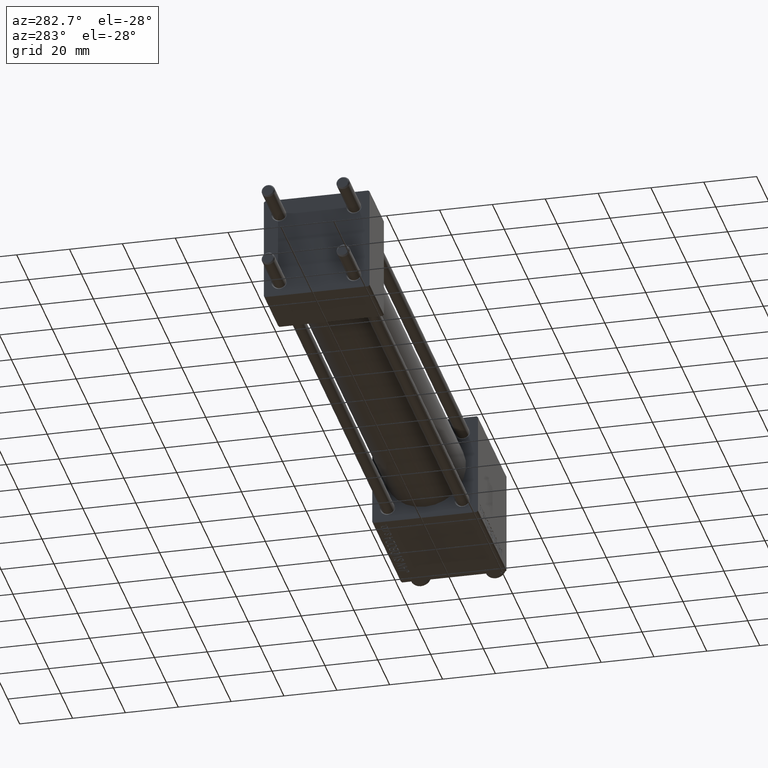
[diagram: clean part render]
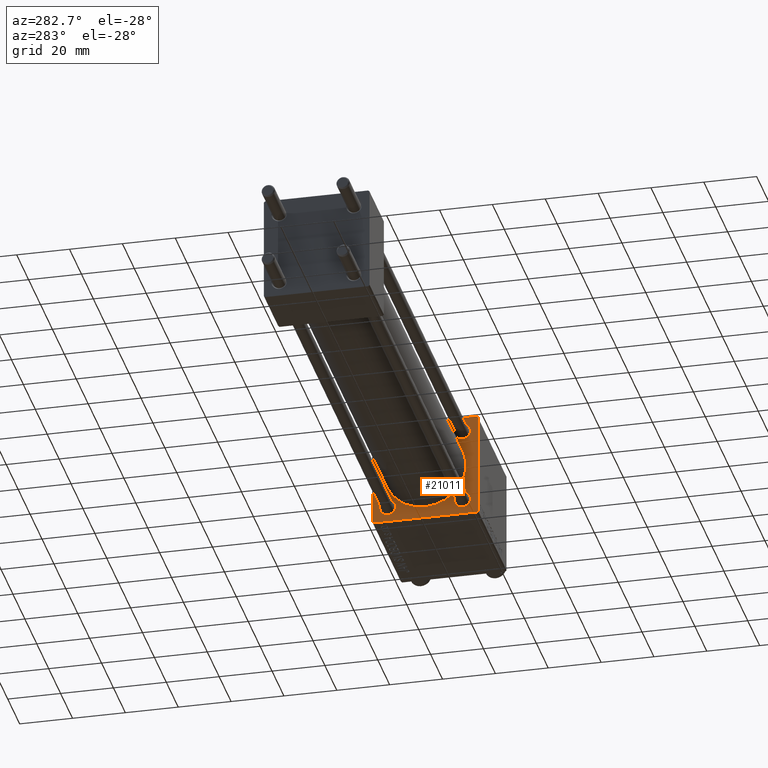
[diagram: same view with one face highlighted and labeled with its STEP entity id]
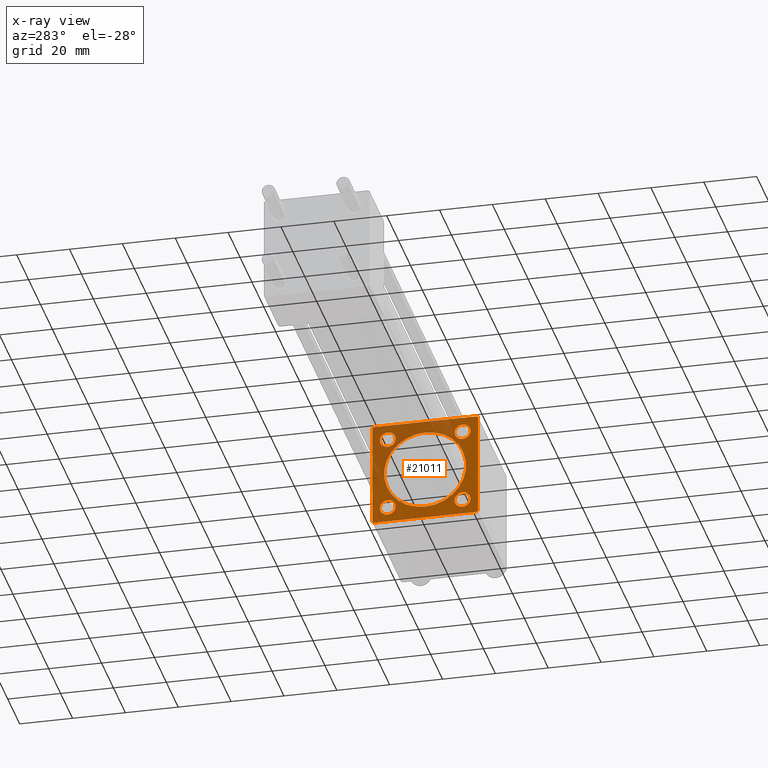
[diagram: x-ray of the same camera — body ghosted, the highlighted face saturated]
A machine part, auxiliary view. The second image highlights one B-rep face of the part: STEP entity #21011.
The next image is the same camera in x-ray: the body ghosted, the highlighted face saturated — about 33% of this face is hidden behind the body in this view.
In plain terms, the highlighted planar face has unit normal (-1, 0, 0).
Its self-contained STEP definition (entity closure, byte-faithful):
#26 = CIRCLE ( 'NONE', #4074, 3.000000000000000888 ) ;
#31 = VECTOR ( 'NONE', #31665, 1000.000000000000000 ) ;
#1076 = CARTESIAN_POINT ( 'NONE',  ( 182.0000000000000000, 1.898202538678397557E-15, -15.50000000000000000 ) ) ;
#1271 = VECTOR ( 'NONE', #11886, 1000.000000000000114 ) ;
#1364 = VERTEX_POINT ( 'NONE', #11517 ) ;
#2494 = DIRECTION ( 'NONE',  ( 1.000000000000000000, 0.000000000000000000, 0.000000000000000000 ) ) ;
#2960 = DIRECTION ( 'NONE',  ( 0.000000000000000000, 0.7071067811865474617, -0.7071067811865474617 ) ) ;
#3205 = CARTESIAN_POINT ( 'NONE',  ( 182.0000000000000000, 19.74999999999999645, 19.74999999999999645 ) ) ;
#3509 = EDGE_CURVE ( 'NONE', #18661, #34815, #49184, .T. ) ;
#3885 = FACE_BOUND ( 'NONE', #35582, .T. ) ;
#4074 = AXIS2_PLACEMENT_3D ( 'NONE', #36990, #33213, #48621 ) ;
#4123 = ORIENTED_EDGE ( 'NONE', *, *, #24737, .T. ) ;
#4125 = DIRECTION ( 'NONE',  ( -0.000000000000000000, 0.000000000000000000, 1.000000000000000000 ) ) ;
#4632 = ORIENTED_EDGE ( 'NONE', *, *, #34709, .T. ) ;
#4836 = DIRECTION ( 'NONE',  ( 0.000000000000000000, -1.000000000000000000, 0.000000000000000000 ) ) ;
#5012 = ORIENTED_EDGE ( 'NONE', *, *, #33655, .T. ) ;
#5402 = LINE ( 'NONE', #24584, #31 ) ;
#5638 = CARTESIAN_POINT ( 'NONE',  ( 182.0000000000000000, -19.50000000000000355, 19.99999999999999645 ) ) ;
#5716 = VERTEX_POINT ( 'NONE', #16281 ) ;
#6629 = VERTEX_POINT ( 'NONE', #1076 ) ;
#6779 = CARTESIAN_POINT ( 'NONE',  ( 182.0000000000000000, -20.00000000000000000, -19.50000000000002487 ) ) ;
#6817 = EDGE_LOOP ( 'NONE', ( #4632, #18607 ) ) ;
#6820 = EDGE_LOOP ( 'NONE', ( #30975, #14927 ) ) ;
#8290 = CARTESIAN_POINT ( 'NONE',  ( 182.0000000000000000, -14.15000000000000036, -14.15000000000000036 ) ) ;
#8538 = DIRECTION ( 'NONE',  ( 0.000000000000000000, 0.000000000000000000, 1.000000000000000000 ) ) ;
#8696 = CARTESIAN_POINT ( 'NONE',  ( 182.0000000000000000, -20.00000000000000355, 19.99999999999999645 ) ) ;
#9050 = CARTESIAN_POINT ( 'NONE',  ( 182.0000000000000000, 14.15000000000000036, -11.15000000000002522 ) ) ;
#9078 = CARTESIAN_POINT ( 'NONE',  ( 182.0000000000000000, 14.15000000000000036, 17.15000000000000568 ) ) ;
#9475 = DIRECTION ( 'NONE',  ( 0.000000000000000000, 0.000000000000000000, -1.000000000000000000 ) ) ;
#9873 = DIRECTION ( 'NONE',  ( 0.000000000000000000, 0.000000000000000000, 1.000000000000000000 ) ) ;
#10011 = AXIS2_PLACEMENT_3D ( 'NONE', #45985, #23260, #19471 ) ;
#10101 = VERTEX_POINT ( 'NONE', #9078 ) ;
#10114 = DIRECTION ( 'NONE',  ( 0.000000000000000000, 0.000000000000000000, -1.000000000000000000 ) ) ;
#10341 = EDGE_CURVE ( 'NONE', #30764, #35157, #36716, .T. ) ;
#10374 = EDGE_CURVE ( 'NONE', #6629, #1364, #13918, .T. ) ;
#10418 = AXIS2_PLACEMENT_3D ( 'NONE', #32850, #13640, #9873 ) ;
#11028 = VERTEX_POINT ( 'NONE', #11065 ) ;
#11065 = CARTESIAN_POINT ( 'NONE',  ( 182.0000000000000000, -14.15000000000000036, -17.14999999999997726 ) ) ;
#11196 = FACE_BOUND ( 'NONE', #6820, .T. ) ;
#11517 = CARTESIAN_POINT ( 'NONE',  ( 182.0000000000000000, 0.000000000000000000, 15.50000000000000000 ) ) ;
#11536 = DIRECTION ( 'NONE',  ( 0.000000000000000000, 0.000000000000000000, 1.000000000000000000 ) ) ;
#11886 = DIRECTION ( 'NONE',  ( 0.000000000000000000, -0.7071067811865474617, 0.7071067811865474617 ) ) ;
#12011 = DIRECTION ( 'NONE',  ( 0.000000000000000000, 0.000000000000000000, 1.000000000000000000 ) ) ;
#12908 = AXIS2_PLACEMENT_3D ( 'NONE', #30470, #34267, #11536 ) ;
#13401 = CARTESIAN_POINT ( 'NONE',  ( 182.0000000000000000, -14.15000000000000036, -11.15000000000002522 ) ) ;
#13640 = DIRECTION ( 'NONE',  ( 1.000000000000000000, 0.000000000000000000, 0.000000000000000000 ) ) ;
#13918 = CIRCLE ( 'NONE', #33967, 15.50000000000000000 ) ;
#14218 = EDGE_CURVE ( 'NONE', #1364, #6629, #27610, .T. ) ;
#14541 = VERTEX_POINT ( 'NONE', #13401 ) ;
#14927 = ORIENTED_EDGE ( 'NONE', *, *, #10374, .T. ) ;
#15574 = CIRCLE ( 'NONE', #38155, 2.999999999999976463 ) ;
#16035 = CARTESIAN_POINT ( 'NONE',  ( 182.0000000000000000, 14.15000000000000036, -17.14999999999997726 ) ) ;
#16226 = VECTOR ( 'NONE', #2960, 1000.000000000000114 ) ;
#16281 = CARTESIAN_POINT ( 'NONE',  ( 182.0000000000000000, 14.15000000000000036, 11.14999999999999858 ) ) ;
#16322 = AXIS2_PLACEMENT_3D ( 'NONE', #47866, #44060, #9475 ) ;
#16851 = CARTESIAN_POINT ( 'NONE',  ( 182.0000000000000000, 19.74999999999999645, -19.74999999999999645 ) ) ;
#16974 = CARTESIAN_POINT ( 'NONE',  ( 182.0000000000000000, 19.49999999999999645, 20.00000000000000000 ) ) ;
#17114 = LINE ( 'NONE', #16851, #18687 ) ;
#17128 = VERTEX_POINT ( 'NONE', #27376 ) ;
#17606 = LINE ( 'NONE', #3205, #16226 ) ;
#17895 = AXIS2_PLACEMENT_3D ( 'NONE', #35004, #27165, #12011 ) ;
#18197 = AXIS2_PLACEMENT_3D ( 'NONE', #8290, #38588, #23923 ) ;
#18238 = CARTESIAN_POINT ( 'NONE',  ( 182.0000000000000000, -14.15000000000000036, 11.15000000000002700 ) ) ;
#18470 = CIRCLE ( 'NONE', #10418, 2.999999999999976463 ) ;
#18488 = ORIENTED_EDGE ( 'NONE', *, *, #33480, .T. ) ;
#18607 = ORIENTED_EDGE ( 'NONE', *, *, #25307, .T. ) ;
#18661 = VERTEX_POINT ( 'NONE', #9050 ) ;
#18687 = VECTOR ( 'NONE', #44129, 1000.000000000000114 ) ;
#19263 = PLANE ( 'NONE',  #19800 ) ;
#19471 = DIRECTION ( 'NONE',  ( 0.000000000000000000, 0.000000000000000000, 1.000000000000000000 ) ) ;
#19665 = ORIENTED_EDGE ( 'NONE', *, *, #10341, .T. ) ;
#19800 = AXIS2_PLACEMENT_3D ( 'NONE', #45784, #41997, #4125 ) ;
#21011 = ADVANCED_FACE ( 'NONE', ( #38963, #3885, #26584, #38705, #11196, #46033 ), #19263, .T. ) ;
#21321 = CARTESIAN_POINT ( 'NONE',  ( 182.0000000000000000, -19.75000000000000000, 19.75000000000000000 ) ) ;
#21678 = CARTESIAN_POINT ( 'NONE',  ( 182.0000000000000000, -14.15000000000000036, 14.15000000000000036 ) ) ;
#22703 = VERTEX_POINT ( 'NONE', #39693 ) ;
#23260 = DIRECTION ( 'NONE',  ( 1.000000000000000000, 0.000000000000000000, 0.000000000000000000 ) ) ;
#23263 = ORIENTED_EDGE ( 'NONE', *, *, #46344, .F. ) ;
#23923 = DIRECTION ( 'NONE',  ( 0.000000000000000000, 0.000000000000000000, 1.000000000000000000 ) ) ;
#24086 = DIRECTION ( 'NONE',  ( 0.000000000000000000, 8.673617379884036705E-17, -1.000000000000000000 ) ) ;
#24584 = CARTESIAN_POINT ( 'NONE',  ( 182.0000000000000000, 19.99999999999999645, 20.00000000000000000 ) ) ;
#24737 = EDGE_CURVE ( 'NONE', #22703, #30775, #48789, .T. ) ;
#25307 = EDGE_CURVE ( 'NONE', #11028, #14541, #39982, .T. ) ;
#25492 = ORIENTED_EDGE ( 'NONE', *, *, #46811, .T. ) ;
#25737 = VERTEX_POINT ( 'NONE', #26602 ) ;
#26584 = FACE_BOUND ( 'NONE', #31086, .T. ) ;
#26602 = CARTESIAN_POINT ( 'NONE',  ( 182.0000000000000000, 19.49999999999999645, -20.00000000000000000 ) ) ;
#27008 = ORIENTED_EDGE ( 'NONE', *, *, #27733, .F. ) ;
#27165 = DIRECTION ( 'NONE',  ( 1.000000000000000000, 0.000000000000000000, 0.000000000000000000 ) ) ;
#27376 = CARTESIAN_POINT ( 'NONE',  ( 182.0000000000000000, 19.99999999999999645, -19.50000000000000000 ) ) ;
#27610 = CIRCLE ( 'NONE', #16322, 15.50000000000000000 ) ;
#27733 = EDGE_CURVE ( 'NONE', #30764, #30775, #47078, .T. ) ;
#28206 = ORIENTED_EDGE ( 'NONE', *, *, #40957, .T. ) ;
#28389 = VECTOR ( 'NONE', #10114, 1000.000000000000000 ) ;
#29392 = DIRECTION ( 'NONE',  ( -0.000000000000000000, 0.7071067811865474617, 0.7071067811865474617 ) ) ;
#29532 = CARTESIAN_POINT ( 'NONE',  ( 182.0000000000000000, 14.15000000000000036, -14.15000000000000036 ) ) ;
#29913 = EDGE_LOOP ( 'NONE', ( #28206, #25492 ) ) ;
#30470 = CARTESIAN_POINT ( 'NONE',  ( 182.0000000000000000, 14.15000000000000036, -14.15000000000000036 ) ) ;
#30764 = VERTEX_POINT ( 'NONE', #40625 ) ;
#30775 = VERTEX_POINT ( 'NONE', #6779 ) ;
#30975 = ORIENTED_EDGE ( 'NONE', *, *, #14218, .T. ) ;
#31086 = EDGE_LOOP ( 'NONE', ( #43298, #18488 ) ) ;
#31665 = DIRECTION ( 'NONE',  ( 0.000000000000000000, -1.000000000000000000, -8.673617379884035472E-17 ) ) ;
#31780 = ORIENTED_EDGE ( 'NONE', *, *, #44443, .T. ) ;
#32001 = VECTOR ( 'NONE', #24086, 1000.000000000000000 ) ;
#32438 = CARTESIAN_POINT ( 'NONE',  ( 182.0000000000000000, 0.000000000000000000, 0.000000000000000000 ) ) ;
#32850 = CARTESIAN_POINT ( 'NONE',  ( 182.0000000000000000, -14.15000000000000036, 14.15000000000000036 ) ) ;
#33213 = DIRECTION ( 'NONE',  ( 1.000000000000000000, 0.000000000000000000, 0.000000000000000000 ) ) ;
#33480 = EDGE_CURVE ( 'NONE', #34815, #18661, #42867, .T. ) ;
#33578 = EDGE_CURVE ( 'NONE', #17128, #25737, #17114, .T. ) ;
#33655 = EDGE_CURVE ( 'NONE', #47507, #46502, #17606, .T. ) ;
#33967 = AXIS2_PLACEMENT_3D ( 'NONE', #32438, #41002, #40510 ) ;
#34267 = DIRECTION ( 'NONE',  ( 1.000000000000000000, 0.000000000000000000, 0.000000000000000000 ) ) ;
#34709 = EDGE_CURVE ( 'NONE', #14541, #11028, #46121, .T. ) ;
#34815 = VERTEX_POINT ( 'NONE', #16035 ) ;
#35004 = CARTESIAN_POINT ( 'NONE',  ( 182.0000000000000000, -14.15000000000000036, -14.15000000000000036 ) ) ;
#35157 = VERTEX_POINT ( 'NONE', #5638 ) ;
#35389 = LINE ( 'NONE', #47500, #41946 ) ;
#35399 = EDGE_CURVE ( 'NONE', #46502, #17128, #40663, .T. ) ;
#35582 = EDGE_LOOP ( 'NONE', ( #31780, #45013 ) ) ;
#36716 = LINE ( 'NONE', #21321, #48498 ) ;
#36873 = CARTESIAN_POINT ( 'NONE',  ( 182.0000000000000000, 19.99999999999999645, 20.00000000000000000 ) ) ;
#36990 = CARTESIAN_POINT ( 'NONE',  ( 182.0000000000000000, 14.15000000000000036, 14.15000000000000036 ) ) ;
#38155 = AXIS2_PLACEMENT_3D ( 'NONE', #21678, #2494, #44165 ) ;
#38297 = ORIENTED_EDGE ( 'NONE', *, *, #35399, .T. ) ;
#38588 = DIRECTION ( 'NONE',  ( 1.000000000000000000, 0.000000000000000000, 0.000000000000000000 ) ) ;
#38705 = FACE_BOUND ( 'NONE', #6817, .T. ) ;
#38837 = AXIS2_PLACEMENT_3D ( 'NONE', #29532, #44931, #8538 ) ;
#38963 = FACE_BOUND ( 'NONE', #29913, .T. ) ;
#39645 = EDGE_LOOP ( 'NONE', ( #47178, #4123, #27008, #19665, #23263, #5012, #38297, #42795 ) ) ;
#39693 = CARTESIAN_POINT ( 'NONE',  ( 182.0000000000000000, -19.50000000000002487, -20.00000000000000000 ) ) ;
#39982 = CIRCLE ( 'NONE', #18197, 2.999999999999976463 ) ;
#40510 = DIRECTION ( 'NONE',  ( 0.000000000000000000, 0.000000000000000000, -1.000000000000000000 ) ) ;
#40625 = CARTESIAN_POINT ( 'NONE',  ( 182.0000000000000000, -20.00000000000000355, 19.49999999999999645 ) ) ;
#40637 = CIRCLE ( 'NONE', #10011, 3.000000000000000888 ) ;
#40663 = LINE ( 'NONE', #36873, #28389 ) ;
#40957 = EDGE_CURVE ( 'NONE', #46560, #49890, #15574, .T. ) ;
#41002 = DIRECTION ( 'NONE',  ( 1.000000000000000000, 0.000000000000000000, 0.000000000000000000 ) ) ;
#41946 = VECTOR ( 'NONE', #4836, 1000.000000000000000 ) ;
#41997 = DIRECTION ( 'NONE',  ( -1.000000000000000000, 0.000000000000000000, -0.000000000000000000 ) ) ;
#42795 = ORIENTED_EDGE ( 'NONE', *, *, #33578, .T. ) ;
#42867 = CIRCLE ( 'NONE', #38837, 2.999999999999976463 ) ;
#43298 = ORIENTED_EDGE ( 'NONE', *, *, #3509, .T. ) ;
#43955 = CARTESIAN_POINT ( 'NONE',  ( 182.0000000000000000, -14.15000000000000036, 17.14999999999997726 ) ) ;
#44060 = DIRECTION ( 'NONE',  ( 1.000000000000000000, 0.000000000000000000, 0.000000000000000000 ) ) ;
#44129 = DIRECTION ( 'NONE',  ( -0.000000000000000000, -0.7071067811865474617, -0.7071067811865474617 ) ) ;
#44165 = DIRECTION ( 'NONE',  ( 0.000000000000000000, 0.000000000000000000, 1.000000000000000000 ) ) ;
#44443 = EDGE_CURVE ( 'NONE', #10101, #5716, #40637, .T. ) ;
#44931 = DIRECTION ( 'NONE',  ( 1.000000000000000000, 0.000000000000000000, 0.000000000000000000 ) ) ;
#44985 = CARTESIAN_POINT ( 'NONE',  ( 182.0000000000000000, -19.75000000000001066, -19.75000000000001066 ) ) ;
#45013 = ORIENTED_EDGE ( 'NONE', *, *, #49450, .T. ) ;
#45784 = CARTESIAN_POINT ( 'NONE',  ( 182.0000000000000000, 0.000000000000000000, 0.000000000000000000 ) ) ;
#45985 = CARTESIAN_POINT ( 'NONE',  ( 182.0000000000000000, 14.15000000000000036, 14.15000000000000036 ) ) ;
#46002 = CARTESIAN_POINT ( 'NONE',  ( 182.0000000000000000, 19.99999999999999645, 19.50000000000000000 ) ) ;
#46033 = FACE_OUTER_BOUND ( 'NONE', #39645, .T. ) ;
#46121 = CIRCLE ( 'NONE', #17895, 2.999999999999976463 ) ;
#46344 = EDGE_CURVE ( 'NONE', #47507, #35157, #5402, .T. ) ;
#46502 = VERTEX_POINT ( 'NONE', #46002 ) ;
#46560 = VERTEX_POINT ( 'NONE', #43955 ) ;
#46644 = EDGE_CURVE ( 'NONE', #25737, #22703, #35389, .T. ) ;
#46811 = EDGE_CURVE ( 'NONE', #49890, #46560, #18470, .T. ) ;
#47078 = LINE ( 'NONE', #8696, #32001 ) ;
#47178 = ORIENTED_EDGE ( 'NONE', *, *, #46644, .T. ) ;
#47500 = CARTESIAN_POINT ( 'NONE',  ( 182.0000000000000000, 19.99999999999999645, -20.00000000000000000 ) ) ;
#47507 = VERTEX_POINT ( 'NONE', #16974 ) ;
#47866 = CARTESIAN_POINT ( 'NONE',  ( 182.0000000000000000, 0.000000000000000000, 0.000000000000000000 ) ) ;
#48498 = VECTOR ( 'NONE', #29392, 1000.000000000000114 ) ;
#48621 = DIRECTION ( 'NONE',  ( 0.000000000000000000, 0.000000000000000000, 1.000000000000000000 ) ) ;
#48789 = LINE ( 'NONE', #44985, #1271 ) ;
#49184 = CIRCLE ( 'NONE', #12908, 2.999999999999976463 ) ;
#49450 = EDGE_CURVE ( 'NONE', #5716, #10101, #26, .T. ) ;
#49890 = VERTEX_POINT ( 'NONE', #18238 ) ;